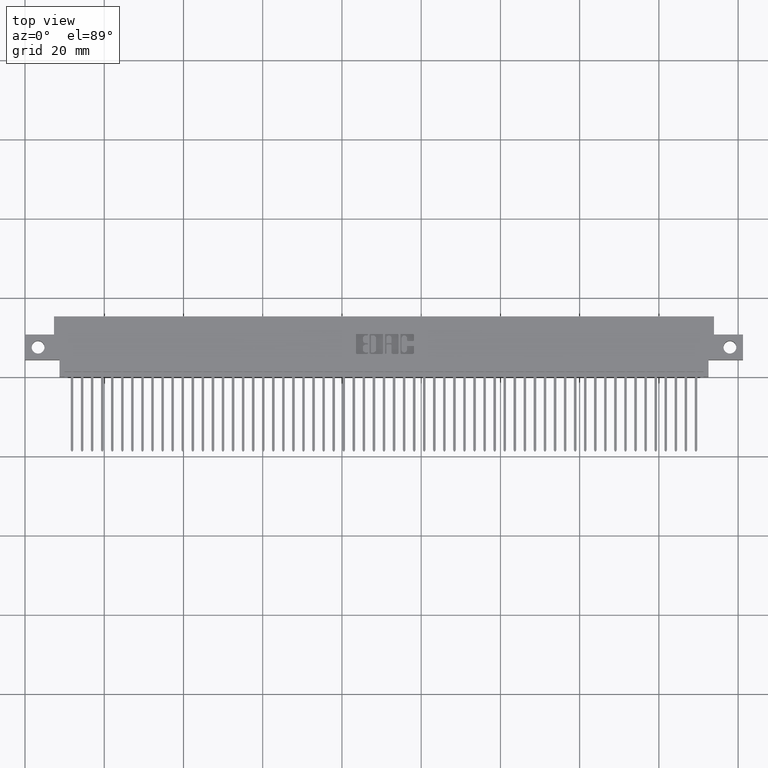
[diagram: clean part render]
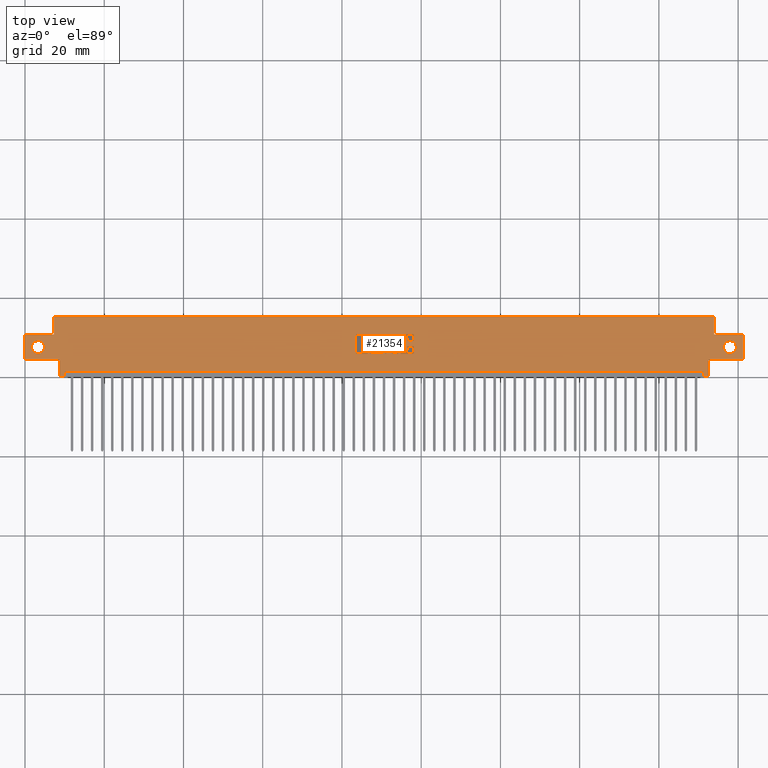
[diagram: same view with one face highlighted and labeled with its STEP entity id]
A machine part, top view. The second image highlights one B-rep face of the part: STEP entity #21354.
In plain terms, the highlighted planar face has unit normal (0, 0, -1).
Its self-contained STEP definition (entity closure, byte-faithful):
#91 = ORIENTED_EDGE ( 'NONE', *, *, #4970, .F. ) ;
#194 = DIRECTION ( 'NONE',  ( -0.0000000000000000000, 0.0000000000000000000, 1.000000000000000000 ) ) ;
#216 = CARTESIAN_POINT ( 'NONE',  ( 6.792500000000000400, 0.1699999999999999800, 7.898971854500427700E-016 ) ) ;
#233 = DIRECTION ( 'NONE',  ( -0.0000000000000000000, 0.0000000000000000000, 1.000000000000000000 ) ) ;
#264 = EDGE_CURVE ( 'NONE', #30564, #38196, #14981, .T. ) ;
#338 = CARTESIAN_POINT ( 'NONE',  ( 3.632528815100188000, 0.3181290308573492800, 0.0000000000000000000 ) ) ;
#360 = CARTESIAN_POINT ( 'NONE',  ( 6.941000000000001600, 0.2950000000000007600, 0.0000000000000000000 ) ) ;
#446 = CARTESIAN_POINT ( 'NONE',  ( 3.854362961706133900, 0.2268432979619826600, 0.0000000000000000000 ) ) ;
#563 = CARTESIAN_POINT ( 'NONE',  ( 7.135000000000000700, 0.5999999999999999800, 0.0000000000000000000 ) ) ;
#667 = AXIS2_PLACEMENT_3D ( 'NONE', #30487, #9021, #34294 ) ;
#702 = CARTESIAN_POINT ( 'NONE',  ( 3.582959680570987300, 0.2337142671046474100, 0.0000000000000000000 ) ) ;
#734 = AXIS2_PLACEMENT_3D ( 'NONE', #18015, #3514, #14060 ) ;
#783 = EDGE_LOOP ( 'NONE', ( #44474, #28794, #91, #19382, #26751, #30014, #6789, #22303 ) ) ;
#784 = EDGE_CURVE ( 'NONE', #27053, #19012, #17725, .T. ) ;
#876 = VERTEX_POINT ( 'NONE', #16237 ) ;
#917 = ORIENTED_EDGE ( 'NONE', *, *, #28686, .T. ) ;
#993 = CARTESIAN_POINT ( 'NONE',  ( 3.854362961706166800, 0.3539562271012330300, 0.0000000000000000000 ) ) ;
#1041 = EDGE_CURVE ( 'NONE', #14621, #26106, #32936, .T. ) ;
#1088 = VERTEX_POINT ( 'NONE', #14156 ) ;
#1107 = CARTESIAN_POINT ( 'NONE',  ( 3.387137060005084100, 0.2867188862052000300, 0.0000000000000000000 ) ) ;
#1119 = CIRCLE ( 'NONE', #45252, 0.009815670203787768200 ) ;
#1169 = DIRECTION ( 'NONE',  ( 1.000000000000000000, 0.0000000000000000000, 0.0000000000000000000 ) ) ;
#1333 = VERTEX_POINT ( 'NONE', #43919 ) ;
#1395 = VECTOR ( 'NONE', #10542, 39.37007874015748100 ) ;
#1465 = DIRECTION ( 'NONE',  ( -0.0000000000000000000, -1.000000000000000000, -0.0000000000000000000 ) ) ;
#1472 = VERTEX_POINT ( 'NONE', #10151 ) ;
#1582 = DIRECTION ( 'NONE',  ( -0.0000000000000000000, 0.0000000000000000000, 1.000000000000000000 ) ) ;
#1630 = EDGE_CURVE ( 'NONE', #40927, #2916, #15379, .T. ) ;
#1643 = CIRCLE ( 'NONE', #36471, 0.03141014465221592800 ) ;
#1653 = VERTEX_POINT ( 'NONE', #338 ) ;
#1676 = VERTEX_POINT ( 'NONE', #3259 ) ;
#1679 = LINE ( 'NONE', #35444, #25346 ) ;
#1776 = ORIENTED_EDGE ( 'NONE', *, *, #37630, .T. ) ;
#1810 = VERTEX_POINT ( 'NONE', #21998 ) ;
#1989 = VERTEX_POINT ( 'NONE', #12195 ) ;
#2081 = LINE ( 'NONE', #20170, #28560 ) ;
#2146 = VERTEX_POINT ( 'NONE', #24601 ) ;
#2207 = VECTOR ( 'NONE', #23719, 39.37007874015748100 ) ;
#2306 = VERTEX_POINT ( 'NONE', #7416 ) ;
#2439 = ORIENTED_EDGE ( 'NONE', *, *, #44091, .T. ) ;
#2487 = VECTOR ( 'NONE', #41875, 39.37007874015748100 ) ;
#2638 = CARTESIAN_POINT ( 'NONE',  ( 0.0000000000000000000, 0.5999999999999999800, 0.0000000000000000000 ) ) ;
#2694 = DIRECTION ( 'NONE',  ( -1.000000000000000000, -0.0000000000000000000, -0.0000000000000000000 ) ) ;
#2803 = ORIENTED_EDGE ( 'NONE', *, *, #41339, .F. ) ;
#2863 = DIRECTION ( 'NONE',  ( -1.000000000000000000, -0.0000000000000000000, -0.0000000000000000000 ) ) ;
#2871 = CARTESIAN_POINT ( 'NONE',  ( 3.804793827176966600, 0.3063502266127570200, 0.0000000000000000000 ) ) ;
#2893 = VERTEX_POINT ( 'NONE', #36463 ) ;
#2916 = VERTEX_POINT ( 'NONE', #32801 ) ;
#3051 = ORIENTED_EDGE ( 'NONE', *, *, #22977, .F. ) ;
#3095 = ORIENTED_EDGE ( 'NONE', *, *, #11048, .T. ) ;
#3259 = CARTESIAN_POINT ( 'NONE',  ( 3.423455039759169000, 0.4133410318342096200, 0.0000000000000000000 ) ) ;
#3391 = ORIENTED_EDGE ( 'NONE', *, *, #10625, .F. ) ;
#3514 = DIRECTION ( 'NONE',  ( -0.0000000000000000000, 0.0000000000000000000, 1.000000000000000000 ) ) ;
#3610 = EDGE_LOOP ( 'NONE', ( #28800, #22172, #23782, #27740, #39690, #7722, #15343, #36798, #44521, #5131, #5933, #40824, #25603, #24251, #10089, #6788, #24886, #5022, #41905, #40056, #31040 ) ) ;
#3715 = CARTESIAN_POINT ( 'NONE',  ( 3.549095618367861700, 0.2366589681657894100, 0.0000000000000000000 ) ) ;
#3798 = DIRECTION ( 'NONE',  ( 1.000000000000000000, 0.0000000000000000000, 0.0000000000000000000 ) ) ;
#3948 = DIRECTION ( 'NONE',  ( 1.000000000000000000, 0.0000000000000000000, 0.0000000000000000000 ) ) ;
#4066 = CARTESIAN_POINT ( 'NONE',  ( 3.286526440416115400, 0.2366589681657894100, 0.0000000000000000000 ) ) ;
#4146 = VERTEX_POINT ( 'NONE', #13284 ) ;
#4195 = AXIS2_PLACEMENT_3D ( 'NONE', #7208, #39018, #28516 ) ;
#4226 = CARTESIAN_POINT ( 'NONE',  ( 3.854362961706131700, 0.4133410318342103900, 0.0000000000000000000 ) ) ;
#4400 = CARTESIAN_POINT ( 'NONE',  ( 3.854362961706133900, 0.2366589681657894100, 0.0000000000000000000 ) ) ;
#4509 = ORIENTED_EDGE ( 'NONE', *, *, #4749, .F. ) ;
#4652 = CARTESIAN_POINT ( 'NONE',  ( 3.387137060005084100, 0.3632811137948578400, 0.0000000000000000000 ) ) ;
#4692 = ORIENTED_EDGE ( 'NONE', *, *, #10092, .F. ) ;
#4749 = EDGE_CURVE ( 'NONE', #24287, #8225, #17411, .T. ) ;
#4756 = VECTOR ( 'NONE', #39644, 39.37007874015748100 ) ;
#4777 = FACE_BOUND ( 'NONE', #37970, .T. ) ;
#4827 = EDGE_CURVE ( 'NONE', #30575, #33932, #1643, .T. ) ;
#4913 = DIRECTION ( 'NONE',  ( -0.0000000000000000000, 0.0000000000000000000, 1.000000000000000000 ) ) ;
#4964 = ORIENTED_EDGE ( 'NONE', *, *, #20894, .F. ) ;
#4970 = EDGE_CURVE ( 'NONE', #10348, #32690, #36592, .T. ) ;
#4998 = DIRECTION ( 'NONE',  ( -0.0000000000000000000, 1.000000000000000000, -0.0000000000000000000 ) ) ;
#5022 = ORIENTED_EDGE ( 'NONE', *, *, #7298, .F. ) ;
#5028 = CIRCLE ( 'NONE', #45544, 0.009815670203805252500 ) ;
#5131 = ORIENTED_EDGE ( 'NONE', *, *, #264, .T. ) ;
#5270 = CARTESIAN_POINT ( 'NONE',  ( 0.0000000000000000000, 0.2268432979619841000, 0.0000000000000000000 ) ) ;
#5423 = EDGE_CURVE ( 'NONE', #32579, #38389, #42261, .T. ) ;
#5442 = CIRCLE ( 'NONE', #4195, 0.009815670203806891800 ) ;
#5453 = EDGE_LOOP ( 'NONE', ( #4509, #3391 ) ) ;
#5521 = CARTESIAN_POINT ( 'NONE',  ( 3.742464321382818600, 0.2668421540424524800, 0.0000000000000000000 ) ) ;
#5740 = ORIENTED_EDGE ( 'NONE', *, *, #21071, .T. ) ;
#5793 = EDGE_CURVE ( 'NONE', #37746, #1653, #41681, .T. ) ;
#5872 = VECTOR ( 'NONE', #25123, 39.37007874015748100 ) ;
#5933 = ORIENTED_EDGE ( 'NONE', *, *, #6584, .F. ) ;
#6007 = CARTESIAN_POINT ( 'NONE',  ( 0.3924999999999996800, 0.0000000000000000000, 0.0000000000000000000 ) ) ;
#6074 = VERTEX_POINT ( 'NONE', #38379 ) ;
#6080 = LINE ( 'NONE', #10922, #32651 ) ;
#6119 = CARTESIAN_POINT ( 'NONE',  ( 3.589830649713647000, 0.2337142671046474100, 0.0000000000000000000 ) ) ;
#6142 = CARTESIAN_POINT ( 'NONE',  ( 0.0000000000000000000, 0.4231567020380321800, 0.0000000000000000000 ) ) ;
#6177 = VERTEX_POINT ( 'NONE', #14490 ) ;
#6211 = DIRECTION ( 'NONE',  ( 1.000000000000000000, 0.0000000000000000000, 0.0000000000000000000 ) ) ;
#6251 = VERTEX_POINT ( 'NONE', #39177 ) ;
#6325 = CARTESIAN_POINT ( 'NONE',  ( 3.585904381632127400, 0.4231567020380060400, 0.0000000000000000000 ) ) ;
#6355 = AXIS2_PLACEMENT_3D ( 'NONE', #14654, #10841, #3948 ) ;
#6443 = LINE ( 'NONE', #6142, #43283 ) ;
#6470 = VERTEX_POINT ( 'NONE', #40758 ) ;
#6482 = VERTEX_POINT ( 'NONE', #12082 ) ;
#6500 = VECTOR ( 'NONE', #35402, 39.37007874015748100 ) ;
#6542 = VERTEX_POINT ( 'NONE', #19044 ) ;
#6584 = EDGE_CURVE ( 'NONE', #876, #38196, #34810, .T. ) ;
#6615 = DIRECTION ( 'NONE',  ( 0.0000000000000000000, -1.000000000000000000, 0.0000000000000000000 ) ) ;
#6788 = ORIENTED_EDGE ( 'NONE', *, *, #26376, .F. ) ;
#6789 = ORIENTED_EDGE ( 'NONE', *, *, #32417, .F. ) ;
#6807 = LINE ( 'NONE', #6970, #9073 ) ;
#6881 = CARTESIAN_POINT ( 'NONE',  ( 3.864178631909972200, 0.0000000000000000000, 0.0000000000000000000 ) ) ;
#6898 = CARTESIAN_POINT ( 'NONE',  ( 3.296342110619922200, 0.2366589681657894100, 0.0000000000000000000 ) ) ;
#6909 = ORIENTED_EDGE ( 'NONE', *, *, #25952, .F. ) ;
#6970 = CARTESIAN_POINT ( 'NONE',  ( 0.0000000000000000000, 0.3318709691426833300, 0.0000000000000000000 ) ) ;
#7015 = CARTESIAN_POINT ( 'NONE',  ( 3.738538053301299500, 0.4133410318342096200, 0.0000000000000000000 ) ) ;
#7034 = DIRECTION ( 'NONE',  ( -0.0000000000000000000, 1.000000000000000000, -0.0000000000000000000 ) ) ;
#7208 = CARTESIAN_POINT ( 'NONE',  ( 3.433270709962976200, 0.2366589681657894100, 0.0000000000000000000 ) ) ;
#7276 = CARTESIAN_POINT ( 'NONE',  ( 3.286526440416115400, 0.4133410318342096200, 0.0000000000000000000 ) ) ;
#7298 = EDGE_CURVE ( 'NONE', #43842, #29191, #6443, .T. ) ;
#7319 = DIRECTION ( 'NONE',  ( 1.000000000000000000, 0.0000000000000000000, 0.0000000000000000000 ) ) ;
#7383 = LINE ( 'NONE', #45799, #20915 ) ;
#7416 = CARTESIAN_POINT ( 'NONE',  ( 0.3424999999999999700, 0.1699999999999999800, 0.0000000000000000000 ) ) ;
#7504 = VERTEX_POINT ( 'NONE', #17221 ) ;
#7634 = EDGE_CURVE ( 'NONE', #21026, #12960, #30131, .T. ) ;
#7650 = EDGE_CURVE ( 'NONE', #26898, #10774, #27853, .T. ) ;
#7709 = DIRECTION ( 'NONE',  ( -0.0000000000000000000, -1.000000000000000000, -0.0000000000000000000 ) ) ;
#7719 = CARTESIAN_POINT ( 'NONE',  ( 6.792500000000000400, 0.0000000000000000000, 0.0000000000000000000 ) ) ;
#7722 = ORIENTED_EDGE ( 'NONE', *, *, #34902, .F. ) ;
#7726 = VECTOR ( 'NONE', #8182, 39.37007874015748100 ) ;
#7778 = CARTESIAN_POINT ( 'NONE',  ( 3.701729290037010700, 0.2268432979619841000, 0.0000000000000000000 ) ) ;
#7794 = EDGE_CURVE ( 'NONE', #24165, #36481, #12064, .T. ) ;
#7929 = DIRECTION ( 'NONE',  ( 1.000000000000000000, 0.0000000000000000000, 0.0000000000000000000 ) ) ;
#8004 = CARTESIAN_POINT ( 'NONE',  ( 3.407504575677997600, 0.2337142671046474100, 0.0000000000000000000 ) ) ;
#8092 = DIRECTION ( 'NONE',  ( -0.0000000000000000000, 0.0000000000000000000, 1.000000000000000000 ) ) ;
#8178 = CARTESIAN_POINT ( 'NONE',  ( 0.0000000000000000000, 0.4231567020380505000, 0.0000000000000000000 ) ) ;
#8182 = DIRECTION ( 'NONE',  ( 0.0000000000000000000, -1.000000000000000000, 0.0000000000000000000 ) ) ;
#8192 = DIRECTION ( 'NONE',  ( 1.000000000000000000, 0.0000000000000000000, 0.0000000000000000000 ) ) ;
#8205 = DIRECTION ( 'NONE',  ( -0.0000000000000000000, 0.0000000000000000000, 1.000000000000000000 ) ) ;
#8225 = VERTEX_POINT ( 'NONE', #27380 ) ;
#8243 = CARTESIAN_POINT ( 'NONE',  ( 7.135000000000000700, 0.1699999999999999800, 8.737854911916364900E-016 ) ) ;
#8290 = DIRECTION ( 'NONE',  ( 1.000000000000000000, 0.0000000000000000000, 0.0000000000000000000 ) ) ;
#8311 = ORIENTED_EDGE ( 'NONE', *, *, #38759, .F. ) ;
#8488 = AXIS2_PLACEMENT_3D ( 'NONE', #7015, #24659, #31949 ) ;
#8502 = VERTEX_POINT ( 'NONE', #36416 ) ;
#8513 = EDGE_CURVE ( 'NONE', #19838, #26898, #38031, .T. ) ;
#8564 = VERTEX_POINT ( 'NONE', #360 ) ;
#8615 = EDGE_CURVE ( 'NONE', #30661, #14661, #42004, .T. ) ;
#8789 = VECTOR ( 'NONE', #45174, 39.37007874015748100 ) ;
#8840 = CARTESIAN_POINT ( 'NONE',  ( 0.0000000000000000000, 0.3063502266127570200, 0.0000000000000000000 ) ) ;
#8869 = CARTESIAN_POINT ( 'NONE',  ( 3.794978156973178900, 0.0000000000000000000, 0.0000000000000000000 ) ) ;
#9021 = DIRECTION ( 'NONE',  ( -0.0000000000000000000, 0.0000000000000000000, 1.000000000000000000 ) ) ;
#9073 = VECTOR ( 'NONE', #32217, 39.37007874015748100 ) ;
#9194 = ORIENTED_EDGE ( 'NONE', *, *, #23230, .F. ) ;
#9249 = AXIS2_PLACEMENT_3D ( 'NONE', #20831, #35207, #46219 ) ;
#9351 = VECTOR ( 'NONE', #4998, 39.37007874015748100 ) ;
#9418 = CARTESIAN_POINT ( 'NONE',  ( 3.728722383097458500, 0.0000000000000000000, 0.0000000000000000000 ) ) ;
#9613 = DIRECTION ( 'NONE',  ( 1.000000000000000000, 0.0000000000000000000, 0.0000000000000000000 ) ) ;
#9622 = CARTESIAN_POINT ( 'NONE',  ( 3.558911288571669400, 0.2366589681657894100, 0.0000000000000000000 ) ) ;
#9929 = CARTESIAN_POINT ( 'NONE',  ( -0.0000000000000000000, 0.3181290308573562800, 0.0000000000000000000 ) ) ;
#9951 = CARTESIAN_POINT ( 'NONE',  ( 3.407504575677999800, 0.4162857328953857300, 0.0000000000000000000 ) ) ;
#10015 = AXIS2_PLACEMENT_3D ( 'NONE', #31142, #20407, #27036 ) ;
#10032 = VERTEX_POINT ( 'NONE', #8004 ) ;
#10089 = ORIENTED_EDGE ( 'NONE', *, *, #31610, .F. ) ;
#10092 = EDGE_CURVE ( 'NONE', #32484, #27977, #10990, .T. ) ;
#10151 = CARTESIAN_POINT ( 'NONE',  ( 3.400633606535351300, 0.4094147637527351700, 0.0000000000000000000 ) ) ;
#10217 = AXIS2_PLACEMENT_3D ( 'NONE', #21947, #25734, #43979 ) ;
#10255 = VECTOR ( 'NONE', #35822, 39.37007874015748100 ) ;
#10329 = CARTESIAN_POINT ( 'NONE',  ( 3.549095618367861700, 0.2268432979619826600, 0.0000000000000000000 ) ) ;
#10348 = VERTEX_POINT ( 'NONE', #10329 ) ;
#10403 = LINE ( 'NONE', #43066, #5872 ) ;
#10439 = AXIS2_PLACEMENT_3D ( 'NONE', #22856, #19409, #18790 ) ;
#10542 = DIRECTION ( 'NONE',  ( 1.000000000000000000, 0.0000000000000000000, 0.0000000000000000000 ) ) ;
#10625 = EDGE_CURVE ( 'NONE', #8225, #24287, #21695, .T. ) ;
#10649 = AXIS2_PLACEMENT_3D ( 'NONE', #32796, #233, #22062 ) ;
#10774 = VERTEX_POINT ( 'NONE', #6119 ) ;
#10816 = CARTESIAN_POINT ( 'NONE',  ( 3.558911288571669400, 0.0000000000000000000, 0.0000000000000000000 ) ) ;
#10841 = DIRECTION ( 'NONE',  ( -0.0000000000000000000, 0.0000000000000000000, 1.000000000000000000 ) ) ;
#10922 = CARTESIAN_POINT ( 'NONE',  ( -1.634053534411870200E-015, 0.2268432979619607000, 0.0000000000000000000 ) ) ;
#10954 = FACE_BOUND ( 'NONE', #3610, .T. ) ;
#10990 = CIRCLE ( 'NONE', #27131, 0.009815670203795964800 ) ;
#11048 = EDGE_CURVE ( 'NONE', #41425, #15878, #31229, .T. ) ;
#11089 = DIRECTION ( 'NONE',  ( 1.000000000000000000, 0.0000000000000000000, 0.0000000000000000000 ) ) ;
#11179 = CIRCLE ( 'NONE', #43391, 0.03141014465217440600 ) ;
#11243 = CARTESIAN_POINT ( 'NONE',  ( 6.847499999999999300, 0.5999999999999999800, 0.0000000000000000000 ) ) ;
#11313 = DIRECTION ( 'NONE',  ( -0.0000000000000000000, 0.0000000000000000000, 1.000000000000000000 ) ) ;
#11355 = CARTESIAN_POINT ( 'NONE',  ( 3.711544960240806400, 0.2366589681657803300, 0.0000000000000000000 ) ) ;
#11373 = EDGE_CURVE ( 'NONE', #6251, #4146, #28374, .T. ) ;
#11477 = CARTESIAN_POINT ( 'NONE',  ( 3.355726915352927900, 0.0000000000000000000, 0.0000000000000000000 ) ) ;
#11512 = CARTESIAN_POINT ( 'NONE',  ( 3.400633606535351300, 0.4162857328953857300, 0.0000000000000000000 ) ) ;
#11627 = DIRECTION ( 'NONE',  ( -0.0000000000000000000, 0.0000000000000000000, 1.000000000000000000 ) ) ;
#11684 = EDGE_LOOP ( 'NONE', ( #3095, #8311, #6909, #16028, #24896, #44713, #11778, #16171, #46107, #42470, #9194, #38610, #39137, #2803, #22555, #1776 ) ) ;
#11726 = VECTOR ( 'NONE', #17546, 39.37007874015748100 ) ;
#11778 = ORIENTED_EDGE ( 'NONE', *, *, #36649, .F. ) ;
#11827 = CARTESIAN_POINT ( 'NONE',  ( 3.701729290037011600, 0.4133410318342098400, 0.0000000000000000000 ) ) ;
#12030 = CARTESIAN_POINT ( 'NONE',  ( 0.0000000000000000000, 0.4231567020380505000, 0.0000000000000000000 ) ) ;
#12034 = CARTESIAN_POINT ( 'NONE',  ( -0.0000000000000000000, 0.4094147637527351700, 0.0000000000000000000 ) ) ;
#12064 = LINE ( 'NONE', #14016, #1395 ) ;
#12082 = CARTESIAN_POINT ( 'NONE',  ( 3.794978156973166000, 0.3637718973050446700, 0.0000000000000000000 ) ) ;
#12149 = DIRECTION ( 'NONE',  ( 1.000000000000000000, 0.0000000000000000000, 0.0000000000000000000 ) ) ;
#12185 = CARTESIAN_POINT ( 'NONE',  ( 3.854362961706156600, 0.3063502266127570200, 0.0000000000000000000 ) ) ;
#12190 = VECTOR ( 'NONE', #7709, 39.37007874015748100 ) ;
#12195 = CARTESIAN_POINT ( 'NONE',  ( 3.407504575677973600, 0.3250000000000198300, 0.0000000000000000000 ) ) ;
#12393 = CARTESIAN_POINT ( 'NONE',  ( 3.854362961706166800, 0.3637718973050381200, 0.0000000000000000000 ) ) ;
#12436 = EDGE_CURVE ( 'NONE', #1088, #23491, #6807, .T. ) ;
#12474 = DIRECTION ( 'NONE',  ( -1.000000000000000000, 0.0000000000000000000, 0.0000000000000000000 ) ) ;
#12567 = VECTOR ( 'NONE', #19384, 39.37007874015748100 ) ;
#12646 = AXIS2_PLACEMENT_3D ( 'NONE', #11827, #40979, #1169 ) ;
#12662 = VECTOR ( 'NONE', #27772, 39.37007874015748100 ) ;
#12826 = EDGE_CURVE ( 'NONE', #1810, #23128, #27046, .T. ) ;
#12894 = LINE ( 'NONE', #10816, #19685 ) ;
#12914 = VERTEX_POINT ( 'NONE', #5521 ) ;
#12960 = VERTEX_POINT ( 'NONE', #28052 ) ;
#13123 = AXIS2_PLACEMENT_3D ( 'NONE', #41676, #16795, #13307 ) ;
#13168 = CIRCLE ( 'NONE', #12646, 0.009815670203795418300 ) ;
#13195 = VECTOR ( 'NONE', #15420, 39.37007874015748100 ) ;
#13249 = EDGE_CURVE ( 'NONE', #44507, #10774, #14632, .T. ) ;
#13268 = ORIENTED_EDGE ( 'NONE', *, *, #27492, .F. ) ;
#13284 = CARTESIAN_POINT ( 'NONE',  ( 3.433270709963010000, 0.4231567020380505000, 0.0000000000000000000 ) ) ;
#13307 = DIRECTION ( 'NONE',  ( 1.000000000000000000, 0.0000000000000000000, 0.0000000000000000000 ) ) ;
#13309 = EDGE_CURVE ( 'NONE', #19012, #24165, #42375, .T. ) ;
#13376 = EDGE_CURVE ( 'NONE', #13445, #14621, #5028, .T. ) ;
#13445 = VERTEX_POINT ( 'NONE', #993 ) ;
#13447 = ORIENTED_EDGE ( 'NONE', *, *, #36426, .F. ) ;
#13619 = AXIS2_PLACEMENT_3D ( 'NONE', #40419, #29720, #37333 ) ;
#13632 = DIRECTION ( 'NONE',  ( 1.000000000000000000, 0.0000000000000000000, 0.0000000000000000000 ) ) ;
#14016 = CARTESIAN_POINT ( 'NONE',  ( -0.0000000000000000000, 0.2268432979619826600, 0.0000000000000000000 ) ) ;
#14060 = DIRECTION ( 'NONE',  ( 1.000000000000000000, 0.0000000000000000000, 0.0000000000000000000 ) ) ;
#14122 = VECTOR ( 'NONE', #33187, 39.37007874015748100 ) ;
#14156 = CARTESIAN_POINT ( 'NONE',  ( 3.400633606535310400, 0.3318709691426833300, 0.0000000000000000000 ) ) ;
#14366 = FACE_BOUND ( 'NONE', #5453, .T. ) ;
#14490 = CARTESIAN_POINT ( 'NONE',  ( 3.711544960240806400, 0.4133410318342004600, 0.0000000000000000000 ) ) ;
#14621 = VERTEX_POINT ( 'NONE', #44392 ) ;
#14632 = CIRCLE ( 'NONE', #39145, 0.006870969142657995000 ) ;
#14654 = CARTESIAN_POINT ( 'NONE',  ( 3.400633606535310400, 0.3250000000000198300, 0.0000000000000000000 ) ) ;
#14661 = VERTEX_POINT ( 'NONE', #44695 ) ;
#14670 = VECTOR ( 'NONE', #6615, 39.37007874015748100 ) ;
#14769 = DIRECTION ( 'NONE',  ( 1.000000000000000000, 0.0000000000000000000, 0.0000000000000000000 ) ) ;
#14823 = LINE ( 'NONE', #32162, #10255 ) ;
#14925 = DIRECTION ( 'NONE',  ( -0.0000000000000000000, 0.0000000000000000000, 1.000000000000000000 ) ) ;
#14965 = AXIS2_PLACEMENT_3D ( 'NONE', #42703, #35188, #20815 ) ;
#14981 = CIRCLE ( 'NONE', #9249, 0.03141014465218151100 ) ;
#15070 = CARTESIAN_POINT ( 'NONE',  ( 3.433270709963010000, 0.4133410318342096200, 0.0000000000000000000 ) ) ;
#15273 = LINE ( 'NONE', #9929, #26504 ) ;
#15343 = ORIENTED_EDGE ( 'NONE', *, *, #26202, .F. ) ;
#15362 = CARTESIAN_POINT ( 'NONE',  ( 3.642344485303985000, 0.2366589681657873000, 0.0000000000000000000 ) ) ;
#15366 = AXIS2_PLACEMENT_3D ( 'NONE', #36252, #194, #14769 ) ;
#15379 = LINE ( 'NONE', #36232, #35708 ) ;
#15384 = AXIS2_PLACEMENT_3D ( 'NONE', #6898, #39651, #32152 ) ;
#15420 = DIRECTION ( 'NONE',  ( 0.0000000000000000000, -1.000000000000000000, 0.0000000000000000000 ) ) ;
#15423 = CARTESIAN_POINT ( 'NONE',  ( 3.589830649713647000, 0.3083133606535450300, 0.0000000000000000000 ) ) ;
#15544 = DIRECTION ( 'NONE',  ( -0.0000000000000000000, 0.0000000000000000000, 1.000000000000000000 ) ) ;
#15628 = VERTEX_POINT ( 'NONE', #16900 ) ;
#15645 = CARTESIAN_POINT ( 'NONE',  ( 3.400633606535310400, 0.3250000000000198300, 0.0000000000000000000 ) ) ;
#15878 = VERTEX_POINT ( 'NONE', #7719 ) ;
#15896 = CARTESIAN_POINT ( 'NONE',  ( 3.701729290037010700, 0.2366589681657803300, 0.0000000000000000000 ) ) ;
#16028 = ORIENTED_EDGE ( 'NONE', *, *, #44413, .F. ) ;
#16043 = EDGE_CURVE ( 'NONE', #12914, #18573, #27971, .T. ) ;
#16097 = EDGE_CURVE ( 'NONE', #1472, #30871, #34678, .T. ) ;
#16118 = LINE ( 'NONE', #28431, #6500 ) ;
#16124 = CARTESIAN_POINT ( 'NONE',  ( 3.400633606535351300, 0.4231567020380321800, 0.0000000000000000000 ) ) ;
#16171 = ORIENTED_EDGE ( 'NONE', *, *, #19516, .F. ) ;
#16237 = CARTESIAN_POINT ( 'NONE',  ( 3.400633606415414300, 0.2405852362473096800, 0.0000000000000000000 ) ) ;
#16264 = VECTOR ( 'NONE', #34597, 39.37007874015748100 ) ;
#16451 = VERTEX_POINT ( 'NONE', #24689 ) ;
#16700 = VERTEX_POINT ( 'NONE', #22194 ) ;
#16795 = DIRECTION ( 'NONE',  ( 0.0000000000000000000, 0.0000000000000000000, 1.000000000000000000 ) ) ;
#16900 = CARTESIAN_POINT ( 'NONE',  ( 6.742500000000000600, 0.05000000000000000300, 0.0000000000000000000 ) ) ;
#16946 = ORIENTED_EDGE ( 'NONE', *, *, #17462, .F. ) ;
#17221 = CARTESIAN_POINT ( 'NONE',  ( 3.864178631909940300, 0.2965345564089699200, 0.0000000000000000000 ) ) ;
#17296 = CARTESIAN_POINT ( 'NONE',  ( 3.728722383097458500, 0.4133410318342096200, 0.0000000000000000000 ) ) ;
#17338 = CARTESIAN_POINT ( 'NONE',  ( 7.005000000000001700, 0.2950000000000007600, 0.0000000000000000000 ) ) ;
#17411 = CIRCLE ( 'NONE', #13123, 0.06399999999999997400 ) ;
#17462 = EDGE_CURVE ( 'NONE', #26106, #40141, #37889, .T. ) ;
#17546 = DIRECTION ( 'NONE',  ( 0.0000000000000000000, 1.000000000000000000, -0.0000000000000000000 ) ) ;
#17555 = DIRECTION ( 'NONE',  ( -1.000000000000000000, 0.0000000000000000000, 0.0000000000000000000 ) ) ;
#17725 = LINE ( 'NONE', #9418, #2487 ) ;
#17957 = EDGE_CURVE ( 'NONE', #16700, #10348, #37801, .T. ) ;
#18015 = CARTESIAN_POINT ( 'NONE',  ( 3.400633606535335300, 0.2337142671046474100, 0.0000000000000000000 ) ) ;
#18291 = ORIENTED_EDGE ( 'NONE', *, *, #42522, .F. ) ;
#18293 = EDGE_CURVE ( 'NONE', #23469, #1333, #6080, .T. ) ;
#18489 = CARTESIAN_POINT ( 'NONE',  ( 3.794978156973178900, 0.2668421540424524800, 0.0000000000000000000 ) ) ;
#18573 = VERTEX_POINT ( 'NONE', #31072 ) ;
#18725 = ORIENTED_EDGE ( 'NONE', *, *, #1041, .F. ) ;
#18790 = DIRECTION ( 'NONE',  ( 1.000000000000000000, 0.0000000000000000000, 0.0000000000000000000 ) ) ;
#18948 = CARTESIAN_POINT ( 'NONE',  ( 6.792500000000000400, 0.1699999999999999800, 7.898971854500427700E-016 ) ) ;
#18985 = EDGE_CURVE ( 'NONE', #2146, #6482, #29179, .T. ) ;
#19012 = VERTEX_POINT ( 'NONE', #22075 ) ;
#19028 = LINE ( 'NONE', #18948, #32012 ) ;
#19036 = DIRECTION ( 'NONE',  ( -0.0000000000000000000, 0.0000000000000000000, 1.000000000000000000 ) ) ;
#19044 = CARTESIAN_POINT ( 'NONE',  ( 7.135000000000000700, 0.4199999999999999800, 0.0000000000000000000 ) ) ;
#19073 = VECTOR ( 'NONE', #21328, 39.37007874015748100 ) ;
#19317 = CARTESIAN_POINT ( 'NONE',  ( 3.652160155507788300, 0.2366589681657873000, 0.0000000000000000000 ) ) ;
#19352 = CARTESIAN_POINT ( 'NONE',  ( 3.711544960240806400, 0.0000000000000000000, 0.0000000000000000000 ) ) ;
#19382 = ORIENTED_EDGE ( 'NONE', *, *, #17957, .F. ) ;
#19384 = DIRECTION ( 'NONE',  ( -1.000000000000000000, 0.0000000000000000000, 0.0000000000000000000 ) ) ;
#19409 = DIRECTION ( 'NONE',  ( -0.0000000000000000000, 0.0000000000000000000, 1.000000000000000000 ) ) ;
#19509 = AXIS2_PLACEMENT_3D ( 'NONE', #11512, #26472, #25858 ) ;
#19516 = EDGE_CURVE ( 'NONE', #2916, #16451, #38824, .T. ) ;
#19659 = DIRECTION ( 'NONE',  ( -0.0000000000000000000, 0.0000000000000000000, 1.000000000000000000 ) ) ;
#19685 = VECTOR ( 'NONE', #43452, 39.37007874015748100 ) ;
#19746 = CARTESIAN_POINT ( 'NONE',  ( 3.738538053301265300, 0.2268432979619826600, 0.0000000000000000000 ) ) ;
#19767 = LINE ( 'NONE', #26188, #40208 ) ;
#19792 = CARTESIAN_POINT ( 'NONE',  ( -2.860952991545795400E-014, 0.2405852362469053100, 0.0000000000000000000 ) ) ;
#19838 = VERTEX_POINT ( 'NONE', #30200 ) ;
#19920 = CIRCLE ( 'NONE', #40625, 0.009815670203806345400 ) ;
#20027 = DIRECTION ( 'NONE',  ( -0.0000000000000000000, 0.0000000000000000000, 1.000000000000000000 ) ) ;
#20060 = CARTESIAN_POINT ( 'NONE',  ( 7.135000000000000700, 0.1699999999999999800, 8.737854911916364900E-016 ) ) ;
#20062 = DIRECTION ( 'NONE',  ( -1.000000000000000000, 0.0000000000000000000, 0.0000000000000000000 ) ) ;
#20096 = EDGE_CURVE ( 'NONE', #6074, #33932, #16118, .T. ) ;
#20170 = CARTESIAN_POINT ( 'NONE',  ( 3.642344485303985000, 0.0000000000000000000, 0.0000000000000000000 ) ) ;
#20407 = DIRECTION ( 'NONE',  ( -0.0000000000000000000, 0.0000000000000000000, 1.000000000000000000 ) ) ;
#20485 = DIRECTION ( 'NONE',  ( -0.0000000000000000000, -1.000000000000000000, -0.0000000000000000000 ) ) ;
#20561 = DIRECTION ( 'NONE',  ( 1.000000000000000000, 0.0000000000000000000, 0.0000000000000000000 ) ) ;
#20597 = EDGE_LOOP ( 'NONE', ( #35108, #42909, #917, #4692, #5740, #43001, #46527, #23019, #40932, #34347, #32054, #46765, #45132, #28417 ) ) ;
#20814 = LINE ( 'NONE', #40292, #9351 ) ;
#20815 = DIRECTION ( 'NONE',  ( 1.000000000000000000, 0.0000000000000000000, 0.0000000000000000000 ) ) ;
#20831 = CARTESIAN_POINT ( 'NONE',  ( 3.387137060005109400, 0.2719953808994898800, 0.0000000000000000000 ) ) ;
#20851 = DIRECTION ( 'NONE',  ( 1.000000000000000000, 0.0000000000000000000, 0.0000000000000000000 ) ) ;
#20894 = EDGE_CURVE ( 'NONE', #6482, #8502, #46736, .T. ) ;
#20915 = VECTOR ( 'NONE', #13632, 39.37007874015748100 ) ;
#20936 = CARTESIAN_POINT ( 'NONE',  ( 7.135000000000000700, 0.4199999999999999800, 0.0000000000000000000 ) ) ;
#21026 = VERTEX_POINT ( 'NONE', #44811 ) ;
#21071 = EDGE_CURVE ( 'NONE', #32484, #14661, #35845, .T. ) ;
#21135 = ORIENTED_EDGE ( 'NONE', *, *, #22164, .F. ) ;
#21328 = DIRECTION ( 'NONE',  ( 0.0000000000000000000, 1.000000000000000000, -0.0000000000000000000 ) ) ;
#21348 = ORIENTED_EDGE ( 'NONE', *, *, #36302, .T. ) ;
#21354 = ADVANCED_FACE ( 'NONE', ( #43258, #10954, #4777, #14366, #42113, #32432, #32978 ), #32838, .F. ) ;
#21523 = CARTESIAN_POINT ( 'NONE',  ( 3.387137060005125400, 0.4094147637527351700, 0.0000000000000000000 ) ) ;
#21537 = EDGE_CURVE ( 'NONE', #6177, #35631, #13168, .T. ) ;
#21695 = CIRCLE ( 'NONE', #13619, 0.06399999999999997400 ) ;
#21864 = EDGE_LOOP ( 'NONE', ( #37560, #29631, #4964, #45172, #21348, #39756, #2439, #25911, #13268, #24940, #26092, #24334, #21135, #32759, #27114, #30560, #36224, #3051, #16946, #18725 ) ) ;
#21947 = CARTESIAN_POINT ( 'NONE',  ( 0.0000000000000000000, 0.5999999999999999800, 0.0000000000000000000 ) ) ;
#21998 = CARTESIAN_POINT ( 'NONE',  ( 0.3424999999999999700, 0.0000000000000000000, 0.0000000000000000000 ) ) ;
#22062 = DIRECTION ( 'NONE',  ( 1.000000000000000000, 0.0000000000000000000, 0.0000000000000000000 ) ) ;
#22075 = CARTESIAN_POINT ( 'NONE',  ( 3.728722383097458500, 0.2366589681657894100, 0.0000000000000000000 ) ) ;
#22133 = AXIS2_PLACEMENT_3D ( 'NONE', #42577, #30635, #20851 ) ;
#22164 = EDGE_CURVE ( 'NONE', #36481, #30146, #19920, .T. ) ;
#22172 = ORIENTED_EDGE ( 'NONE', *, *, #20096, .F. ) ;
#22194 = CARTESIAN_POINT ( 'NONE',  ( 3.433270709962976200, 0.2268432979619826600, 0.0000000000000000000 ) ) ;
#22303 = ORIENTED_EDGE ( 'NONE', *, *, #11373, .F. ) ;
#22376 = CARTESIAN_POINT ( 'NONE',  ( 3.558911288571669400, 0.4133410318342096200, 0.0000000000000000000 ) ) ;
#22550 = CARTESIAN_POINT ( 'NONE',  ( 3.549095618367827900, 0.4133410318342094500, 0.0000000000000000000 ) ) ;
#22552 = DIRECTION ( 'NONE',  ( 0.0000000000000000000, 1.000000000000000000, -0.0000000000000000000 ) ) ;
#22555 = ORIENTED_EDGE ( 'NONE', *, *, #37070, .F. ) ;
#22770 = CARTESIAN_POINT ( 'NONE',  ( 3.804793827176966600, 0.2965345564089690300, 0.0000000000000000000 ) ) ;
#22837 = CARTESIAN_POINT ( 'NONE',  ( 3.576088711428330800, 0.2337142671046474100, 0.0000000000000000000 ) ) ;
#22856 = CARTESIAN_POINT ( 'NONE',  ( 3.632528815100188000, 0.3083133606535522500, 0.0000000000000000000 ) ) ;
#22977 = EDGE_CURVE ( 'NONE', #40141, #6470, #44472, .T. ) ;
#22980 = CIRCLE ( 'NONE', #40118, 0.006870969142663458500 ) ;
#23019 = ORIENTED_EDGE ( 'NONE', *, *, #5793, .T. ) ;
#23128 = VERTEX_POINT ( 'NONE', #6007 ) ;
#23187 = CIRCLE ( 'NONE', #26942, 0.06400000000000019600 ) ;
#23230 = EDGE_CURVE ( 'NONE', #2306, #31346, #45024, .T. ) ;
#23321 = DIRECTION ( 'NONE',  ( 1.000000000000000000, 0.0000000000000000000, 0.0000000000000000000 ) ) ;
#23462 = DIRECTION ( 'NONE',  ( 0.0000000000000000000, 1.000000000000000000, -0.0000000000000000000 ) ) ;
#23469 = VERTEX_POINT ( 'NONE', #36330 ) ;
#23491 = VERTEX_POINT ( 'NONE', #41431 ) ;
#23719 = DIRECTION ( 'NONE',  ( -0.0000000000000000000, -1.000000000000000000, -0.0000000000000000000 ) ) ;
#23739 = AXIS2_PLACEMENT_3D ( 'NONE', #1107, #19036, #8290 ) ;
#23782 = ORIENTED_EDGE ( 'NONE', *, *, #38136, .T. ) ;
#23786 = EDGE_CURVE ( 'NONE', #1676, #2893, #10403, .T. ) ;
#24063 = VECTOR ( 'NONE', #37783, 39.37007874015748100 ) ;
#24165 = VERTEX_POINT ( 'NONE', #19746 ) ;
#24214 = VECTOR ( 'NONE', #2694, 39.37007874015748100 ) ;
#24251 = ORIENTED_EDGE ( 'NONE', *, *, #18293, .F. ) ;
#24287 = VERTEX_POINT ( 'NONE', #24438 ) ;
#24334 = ORIENTED_EDGE ( 'NONE', *, *, #30872, .F. ) ;
#24438 = CARTESIAN_POINT ( 'NONE',  ( 0.1939999999999999800, 0.2949999999999999300, 0.0000000000000000000 ) ) ;
#24601 = CARTESIAN_POINT ( 'NONE',  ( 3.794978156973166000, 0.3831578454992594100, 0.0000000000000000000 ) ) ;
#24655 = CARTESIAN_POINT ( 'NONE',  ( 3.854362961706153000, 0.2965345564089699200, 0.0000000000000000000 ) ) ;
#24659 = DIRECTION ( 'NONE',  ( -0.0000000000000000000, 0.0000000000000000000, 1.000000000000000000 ) ) ;
#24689 = CARTESIAN_POINT ( 'NONE',  ( 0.2874999999999999800, 0.5999999999999999800, 0.0000000000000000000 ) ) ;
#24819 = CARTESIAN_POINT ( 'NONE',  ( 3.642344485303985000, 0.3083133606535429200, 0.0000000000000000000 ) ) ;
#24886 = ORIENTED_EDGE ( 'NONE', *, *, #34684, .F. ) ;
#24896 = ORIENTED_EDGE ( 'NONE', *, *, #46226, .F. ) ;
#24940 = ORIENTED_EDGE ( 'NONE', *, *, #5423, .F. ) ;
#25123 = DIRECTION ( 'NONE',  ( 0.0000000000000000000, -1.000000000000000000, 0.0000000000000000000 ) ) ;
#25346 = VECTOR ( 'NONE', #45809, 39.37007874015748100 ) ;
#25603 = ORIENTED_EDGE ( 'NONE', *, *, #38483, .F. ) ;
#25727 = AXIS2_PLACEMENT_3D ( 'NONE', #41898, #34706, #30757 ) ;
#25728 = VECTOR ( 'NONE', #22552, 39.37007874015748100 ) ;
#25734 = DIRECTION ( 'NONE',  ( 0.0000000000000000000, 0.0000000000000000000, -1.000000000000000000 ) ) ;
#25735 = LINE ( 'NONE', #563, #12190 ) ;
#25779 = DIRECTION ( 'NONE',  ( 1.000000000000000000, 0.0000000000000000000, 0.0000000000000000000 ) ) ;
#25858 = DIRECTION ( 'NONE',  ( 1.000000000000000000, 0.0000000000000000000, 0.0000000000000000000 ) ) ;
#25911 = ORIENTED_EDGE ( 'NONE', *, *, #38241, .F. ) ;
#25952 = EDGE_CURVE ( 'NONE', #40715, #31683, #43011, .T. ) ;
#26092 = ORIENTED_EDGE ( 'NONE', *, *, #41963, .F. ) ;
#26106 = VERTEX_POINT ( 'NONE', #41307 ) ;
#26156 = LINE ( 'NONE', #40070, #34105 ) ;
#26188 = CARTESIAN_POINT ( 'NONE',  ( 0.0000000000000000000, 0.5999999999999999800, 0.0000000000000000000 ) ) ;
#26202 = EDGE_CURVE ( 'NONE', #21026, #36276, #15273, .T. ) ;
#26255 = DIRECTION ( 'NONE',  ( -0.0000000000000000000, 0.0000000000000000000, 1.000000000000000000 ) ) ;
#26376 = EDGE_CURVE ( 'NONE', #36356, #42913, #32138, .T. ) ;
#26463 = AXIS2_PLACEMENT_3D ( 'NONE', #4226, #38981, #42953 ) ;
#26472 = DIRECTION ( 'NONE',  ( -0.0000000000000000000, 0.0000000000000000000, 1.000000000000000000 ) ) ;
#26504 = VECTOR ( 'NONE', #9613, 39.37007874015748100 ) ;
#26605 = LINE ( 'NONE', #19352, #37950 ) ;
#26691 = DIRECTION ( 'NONE',  ( -0.0000000000000000000, 0.0000000000000000000, 1.000000000000000000 ) ) ;
#26751 = ORIENTED_EDGE ( 'NONE', *, *, #31596, .F. ) ;
#26834 = CARTESIAN_POINT ( 'NONE',  ( 3.400633606415388600, 0.3181290308573562800, 0.0000000000000000000 ) ) ;
#26898 = VERTEX_POINT ( 'NONE', #15423 ) ;
#26942 = AXIS2_PLACEMENT_3D ( 'NONE', #39252, #35879, #17555 ) ;
#26958 = LINE ( 'NONE', #8869, #16264 ) ;
#27036 = DIRECTION ( 'NONE',  ( 1.000000000000000000, 0.0000000000000000000, 0.0000000000000000000 ) ) ;
#27046 = LINE ( 'NONE', #34557, #33876 ) ;
#27051 = EDGE_CURVE ( 'NONE', #8502, #13445, #1679, .T. ) ;
#27053 = VERTEX_POINT ( 'NONE', #17296 ) ;
#27114 = ORIENTED_EDGE ( 'NONE', *, *, #13309, .F. ) ;
#27131 = AXIS2_PLACEMENT_3D ( 'NONE', #15896, #19659, #45041 ) ;
#27191 = LINE ( 'NONE', #31670, #46552 ) ;
#27380 = CARTESIAN_POINT ( 'NONE',  ( 0.06600000000000003100, 0.2949999999999999300, 0.0000000000000000000 ) ) ;
#27492 = EDGE_CURVE ( 'NONE', #38389, #31952, #1119, .T. ) ;
#27503 = CARTESIAN_POINT ( 'NONE',  ( 6.847499999999999300, 0.4199999999999999800, 0.0000000000000000000 ) ) ;
#27740 = ORIENTED_EDGE ( 'NONE', *, *, #12436, .F. ) ;
#27772 = DIRECTION ( 'NONE',  ( -1.000000000000000000, 0.0000000000000000000, 0.0000000000000000000 ) ) ;
#27832 = VERTEX_POINT ( 'NONE', #18489 ) ;
#27853 = LINE ( 'NONE', #43920, #13195 ) ;
#27958 = EDGE_CURVE ( 'NONE', #1989, #1088, #22980, .T. ) ;
#27971 = LINE ( 'NONE', #33292, #25728 ) ;
#27977 = VERTEX_POINT ( 'NONE', #11355 ) ;
#28052 = CARTESIAN_POINT ( 'NONE',  ( 3.355726915352927900, 0.2867188862052000300, 0.0000000000000000000 ) ) ;
#28374 = LINE ( 'NONE', #8178, #12567 ) ;
#28417 = ORIENTED_EDGE ( 'NONE', *, *, #40004, .F. ) ;
#28431 = CARTESIAN_POINT ( 'NONE',  ( 3.355726915352909700, 0.0000000000000000000, 0.0000000000000000000 ) ) ;
#28516 = DIRECTION ( 'NONE',  ( 1.000000000000000000, 0.0000000000000000000, 0.0000000000000000000 ) ) ;
#28560 = VECTOR ( 'NONE', #23462, 39.37007874015748100 ) ;
#28576 = CIRCLE ( 'NONE', #14965, 0.02625691779517995400 ) ;
#28656 = EDGE_CURVE ( 'NONE', #33496, #45498, #20814, .T. ) ;
#28686 = EDGE_CURVE ( 'NONE', #6177, #27977, #26605, .T. ) ;
#28794 = ORIENTED_EDGE ( 'NONE', *, *, #42952, .F. ) ;
#28800 = ORIENTED_EDGE ( 'NONE', *, *, #4827, .T. ) ;
#28807 = AXIS2_PLACEMENT_3D ( 'NONE', #17338, #31361, #46327 ) ;
#28889 = VERTEX_POINT ( 'NONE', #38328 ) ;
#29097 = AXIS2_PLACEMENT_3D ( 'NONE', #24655, #42455, #6211 ) ;
#29179 = LINE ( 'NONE', #44255, #7726 ) ;
#29191 = VERTEX_POINT ( 'NONE', #32254 ) ;
#29542 = CARTESIAN_POINT ( 'NONE',  ( 3.355726915352927900, 0.2719953808994898800, 0.0000000000000000000 ) ) ;
#29631 = ORIENTED_EDGE ( 'NONE', *, *, #27051, .F. ) ;
#29720 = DIRECTION ( 'NONE',  ( 0.0000000000000000000, 0.0000000000000000000, 1.000000000000000000 ) ) ;
#29793 = LINE ( 'NONE', #42567, #11726 ) ;
#29970 = DIRECTION ( 'NONE',  ( 1.000000000000000000, 0.0000000000000000000, 0.0000000000000000000 ) ) ;
#29974 = CIRCLE ( 'NONE', #29097, 0.009815670203787221800 ) ;
#30014 = ORIENTED_EDGE ( 'NONE', *, *, #23786, .F. ) ;
#30041 = DIRECTION ( 'NONE',  ( 1.000000000000000000, 0.0000000000000000000, 0.0000000000000000000 ) ) ;
#30131 = CIRCLE ( 'NONE', #23739, 0.03141014465215583000 ) ;
#30146 = VERTEX_POINT ( 'NONE', #38169 ) ;
#30200 = CARTESIAN_POINT ( 'NONE',  ( 3.599646319917450200, 0.3181290308573481200, 0.0000000000000000000 ) ) ;
#30427 = CARTESIAN_POINT ( 'NONE',  ( 0.0000000000000000000, 0.1699999999999999800, 0.0000000000000000000 ) ) ;
#30487 = CARTESIAN_POINT ( 'NONE',  ( 3.804793827176977700, 0.3637718973050446700, 0.0000000000000000000 ) ) ;
#30534 = LINE ( 'NONE', #12034, #44775 ) ;
#30560 = ORIENTED_EDGE ( 'NONE', *, *, #784, .F. ) ;
#30564 = VERTEX_POINT ( 'NONE', #29542 ) ;
#30575 = VERTEX_POINT ( 'NONE', #21523 ) ;
#30635 = DIRECTION ( 'NONE',  ( -0.0000000000000000000, 0.0000000000000000000, 1.000000000000000000 ) ) ;
#30661 = VERTEX_POINT ( 'NONE', #15362 ) ;
#30757 = DIRECTION ( 'NONE',  ( 1.000000000000000000, 0.0000000000000000000, 0.0000000000000000000 ) ) ;
#30786 = CIRCLE ( 'NONE', #45138, 0.009815670203840767500 ) ;
#30871 = VERTEX_POINT ( 'NONE', #9951 ) ;
#30872 = EDGE_CURVE ( 'NONE', #30146, #7504, #29793, .T. ) ;
#30908 = EDGE_CURVE ( 'NONE', #44507, #36774, #44033, .T. ) ;
#31040 = ORIENTED_EDGE ( 'NONE', *, *, #35718, .F. ) ;
#31072 = CARTESIAN_POINT ( 'NONE',  ( 3.742464321382818600, 0.3831578459575290500, 0.0000000000000000000 ) ) ;
#31142 = CARTESIAN_POINT ( 'NONE',  ( 3.585904381632127400, 0.4133410318342096200, 0.0000000000000000000 ) ) ;
#31229 = LINE ( 'NONE', #41426, #39248 ) ;
#31297 = DIRECTION ( 'NONE',  ( -0.0000000000000000000, 0.0000000000000000000, 1.000000000000000000 ) ) ;
#31346 = VERTEX_POINT ( 'NONE', #30427 ) ;
#31361 = DIRECTION ( 'NONE',  ( 0.0000000000000000000, 0.0000000000000000000, 1.000000000000000000 ) ) ;
#31461 = CARTESIAN_POINT ( 'NONE',  ( 3.854362961706168500, 0.4231567020380505000, 0.0000000000000000000 ) ) ;
#31596 = EDGE_CURVE ( 'NONE', #2893, #16700, #5442, .T. ) ;
#31610 = EDGE_CURVE ( 'NONE', #42913, #23469, #43407, .T. ) ;
#31654 = CIRCLE ( 'NONE', #45201, 0.006870969142662365600 ) ;
#31670 = CARTESIAN_POINT ( 'NONE',  ( 0.3924999999999996800, 0.05000000000000000300, 0.0000000000000000000 ) ) ;
#31683 = VERTEX_POINT ( 'NONE', #216 ) ;
#31949 = DIRECTION ( 'NONE',  ( 1.000000000000000000, 0.0000000000000000000, 0.0000000000000000000 ) ) ;
#31952 = VERTEX_POINT ( 'NONE', #33404 ) ;
#32012 = VECTOR ( 'NONE', #1465, 39.37007874015748100 ) ;
#32054 = ORIENTED_EDGE ( 'NONE', *, *, #7650, .T. ) ;
#32138 = LINE ( 'NONE', #35850, #14670 ) ;
#32152 = DIRECTION ( 'NONE',  ( 1.000000000000000000, 0.0000000000000000000, 0.0000000000000000000 ) ) ;
#32162 = CARTESIAN_POINT ( 'NONE',  ( -1.123269580619305600E-014, 0.3181290308572210000, 0.0000000000000000000 ) ) ;
#32187 = CARTESIAN_POINT ( 'NONE',  ( 0.0000000000000000000, 0.4199999999999999800, 0.0000000000000000000 ) ) ;
#32217 = DIRECTION ( 'NONE',  ( -1.000000000000000000, 0.0000000000000000000, 0.0000000000000000000 ) ) ;
#32254 = CARTESIAN_POINT ( 'NONE',  ( 3.296342110619938200, 0.4231567020380321800, 0.0000000000000000000 ) ) ;
#32276 = LINE ( 'NONE', #2638, #43103 ) ;
#32417 = EDGE_CURVE ( 'NONE', #4146, #1676, #30786, .T. ) ;
#32432 = FACE_BOUND ( 'NONE', #783, .T. ) ;
#32484 = VERTEX_POINT ( 'NONE', #7778 ) ;
#32579 = VERTEX_POINT ( 'NONE', #12185 ) ;
#32615 = CIRCLE ( 'NONE', #734, 0.006870969142662365600 ) ;
#32651 = VECTOR ( 'NONE', #36364, 39.37007874015748100 ) ;
#32690 = VERTEX_POINT ( 'NONE', #9622 ) ;
#32759 = ORIENTED_EDGE ( 'NONE', *, *, #7794, .F. ) ;
#32796 = CARTESIAN_POINT ( 'NONE',  ( 3.738538053301265300, 0.2366589681657894100, 0.0000000000000000000 ) ) ;
#32801 = CARTESIAN_POINT ( 'NONE',  ( 0.2874999999999999800, 0.4199999999999999800, 0.0000000000000000000 ) ) ;
#32838 = PLANE ( 'NONE',  #10217 ) ;
#32936 = LINE ( 'NONE', #6881, #39213 ) ;
#32978 = FACE_BOUND ( 'NONE', #20597, .T. ) ;
#33187 = DIRECTION ( 'NONE',  ( -1.000000000000000000, 0.0000000000000000000, -2.449293598294706400E-016 ) ) ;
#33229 = VECTOR ( 'NONE', #35245, 39.37007874015748100 ) ;
#33292 = CARTESIAN_POINT ( 'NONE',  ( 3.742464321382818600, 0.0000000000000000000, 0.0000000000000000000 ) ) ;
#33404 = CARTESIAN_POINT ( 'NONE',  ( 3.794978156973178900, 0.2965345564089681400, 0.0000000000000000000 ) ) ;
#33431 = CIRCLE ( 'NONE', #6355, 0.006870969142663458500 ) ;
#33496 = VERTEX_POINT ( 'NONE', #27503 ) ;
#33635 = DIRECTION ( 'NONE',  ( 1.000000000000000000, 0.0000000000000000000, 0.0000000000000000000 ) ) ;
#33780 = CARTESIAN_POINT ( 'NONE',  ( 3.400633606535351300, 0.4162857328953857300, 0.0000000000000000000 ) ) ;
#33876 = VECTOR ( 'NONE', #38244, 39.37007874015748100 ) ;
#33932 = VERTEX_POINT ( 'NONE', #34147 ) ;
#34105 = VECTOR ( 'NONE', #43408, 39.37007874015748100 ) ;
#34141 = VERTEX_POINT ( 'NONE', #6325 ) ;
#34147 = CARTESIAN_POINT ( 'NONE',  ( 3.355726915352909700, 0.3780046191005192500, 0.0000000000000000000 ) ) ;
#34294 = DIRECTION ( 'NONE',  ( 1.000000000000000000, 0.0000000000000000000, 0.0000000000000000000 ) ) ;
#34347 = ORIENTED_EDGE ( 'NONE', *, *, #8513, .T. ) ;
#34557 = CARTESIAN_POINT ( 'NONE',  ( 0.0000000000000000000, 0.0000000000000000000, 0.0000000000000000000 ) ) ;
#34597 = DIRECTION ( 'NONE',  ( 0.0000000000000000000, -1.000000000000000000, 0.0000000000000000000 ) ) ;
#34602 = CIRCLE ( 'NONE', #44627, 0.009815670203841313900 ) ;
#34678 = CIRCLE ( 'NONE', #19509, 0.006870969142648706400 ) ;
#34684 = EDGE_CURVE ( 'NONE', #29191, #36356, #36877, .T. ) ;
#34705 = AXIS2_PLACEMENT_3D ( 'NONE', #19317, #26255, #30041 ) ;
#34706 = DIRECTION ( 'NONE',  ( -0.0000000000000000000, 0.0000000000000000000, 1.000000000000000000 ) ) ;
#34794 = CARTESIAN_POINT ( 'NONE',  ( 3.387137060005125400, 0.3780046191005192500, 0.0000000000000000000 ) ) ;
#34810 = LINE ( 'NONE', #19792, #8789 ) ;
#34902 = EDGE_CURVE ( 'NONE', #36276, #1989, #33431, .T. ) ;
#34975 = EDGE_CURVE ( 'NONE', #1653, #19838, #14823, .T. ) ;
#35108 = ORIENTED_EDGE ( 'NONE', *, *, #42024, .T. ) ;
#35188 = DIRECTION ( 'NONE',  ( -0.0000000000000000000, 0.0000000000000000000, 1.000000000000000000 ) ) ;
#35207 = DIRECTION ( 'NONE',  ( -0.0000000000000000000, 0.0000000000000000000, 1.000000000000000000 ) ) ;
#35210 = CARTESIAN_POINT ( 'NONE',  ( 0.0000000000000000000, 0.1699999999999999800, 0.0000000000000000000 ) ) ;
#35245 = DIRECTION ( 'NONE',  ( 1.000000000000000000, 0.0000000000000000000, 0.0000000000000000000 ) ) ;
#35294 = EDGE_CURVE ( 'NONE', #40927, #31346, #32276, .T. ) ;
#35402 = DIRECTION ( 'NONE',  ( 0.0000000000000000000, 1.000000000000000000, -0.0000000000000000000 ) ) ;
#35444 = CARTESIAN_POINT ( 'NONE',  ( -0.0000000000000000000, 0.3539562271012330900, 0.0000000000000000000 ) ) ;
#35587 = EDGE_CURVE ( 'NONE', #10032, #876, #31654, .T. ) ;
#35631 = VERTEX_POINT ( 'NONE', #36231 ) ;
#35708 = VECTOR ( 'NONE', #7319, 39.37007874015748100 ) ;
#35718 = EDGE_CURVE ( 'NONE', #30575, #1472, #30534, .T. ) ;
#35822 = DIRECTION ( 'NONE',  ( -1.000000000000000000, -3.530861605407645300E-014, 0.0000000000000000000 ) ) ;
#35845 = LINE ( 'NONE', #5270, #12662 ) ;
#35850 = CARTESIAN_POINT ( 'NONE',  ( 3.286526440416115400, 0.0000000000000000000, 0.0000000000000000000 ) ) ;
#35870 = CARTESIAN_POINT ( 'NONE',  ( 3.576088711428330800, 0.0000000000000000000, 0.0000000000000000000 ) ) ;
#35879 = DIRECTION ( 'NONE',  ( 0.0000000000000000000, 0.0000000000000000000, 1.000000000000000000 ) ) ;
#36224 = ORIENTED_EDGE ( 'NONE', *, *, #37779, .F. ) ;
#36231 = CARTESIAN_POINT ( 'NONE',  ( 3.701729290037013800, 0.4231567020380060400, 0.0000000000000000000 ) ) ;
#36232 = CARTESIAN_POINT ( 'NONE',  ( 0.0000000000000000000, 0.4199999999999999800, 0.0000000000000000000 ) ) ;
#36252 = CARTESIAN_POINT ( 'NONE',  ( 3.599646319917450200, 0.3083133606535450300, 0.0000000000000000000 ) ) ;
#36276 = VERTEX_POINT ( 'NONE', #26834 ) ;
#36302 = EDGE_CURVE ( 'NONE', #2146, #18573, #36796, .T. ) ;
#36330 = CARTESIAN_POINT ( 'NONE',  ( 3.296342110619918200, 0.2268432979619844400, 0.0000000000000000000 ) ) ;
#36356 = VERTEX_POINT ( 'NONE', #7276 ) ;
#36364 = DIRECTION ( 'NONE',  ( 1.000000000000000000, 7.203446383881635600E-015, 0.0000000000000000000 ) ) ;
#36416 = CARTESIAN_POINT ( 'NONE',  ( 3.804793827176977700, 0.3539562271012330900, 0.0000000000000000000 ) ) ;
#36426 = EDGE_CURVE ( 'NONE', #36672, #8564, #23187, .T. ) ;
#36463 = CARTESIAN_POINT ( 'NONE',  ( 3.423455039759169000, 0.2366589681657894100, 0.0000000000000000000 ) ) ;
#36471 = AXIS2_PLACEMENT_3D ( 'NONE', #34794, #31297, #20561 ) ;
#36481 = VERTEX_POINT ( 'NONE', #446 ) ;
#36529 = DIRECTION ( 'NONE',  ( -0.0000000000000000000, 0.0000000000000000000, 1.000000000000000000 ) ) ;
#36554 = CARTESIAN_POINT ( 'NONE',  ( 3.400633606535335300, 0.2337142671046474100, 0.0000000000000000000 ) ) ;
#36592 = CIRCLE ( 'NONE', #46238, 0.009815670203806891800 ) ;
#36649 = EDGE_CURVE ( 'NONE', #16451, #45498, #19767, .T. ) ;
#36655 = EDGE_CURVE ( 'NONE', #30871, #43842, #37343, .T. ) ;
#36672 = VERTEX_POINT ( 'NONE', #41284 ) ;
#36760 = DIRECTION ( 'NONE',  ( 0.0000000000000000000, 1.000000000000000000, -0.0000000000000000000 ) ) ;
#36774 = VERTEX_POINT ( 'NONE', #44457 ) ;
#36796 = CIRCLE ( 'NONE', #22133, 0.02625691779517339700 ) ;
#36798 = ORIENTED_EDGE ( 'NONE', *, *, #7634, .T. ) ;
#36877 = CIRCLE ( 'NONE', #25727, 0.009815670203822736800 ) ;
#37070 = EDGE_CURVE ( 'NONE', #15628, #28889, #45837, .T. ) ;
#37333 = DIRECTION ( 'NONE',  ( 1.000000000000000000, 0.0000000000000000000, 0.0000000000000000000 ) ) ;
#37343 = CIRCLE ( 'NONE', #45817, 0.006870969142648706400 ) ;
#37560 = ORIENTED_EDGE ( 'NONE', *, *, #13376, .F. ) ;
#37630 = EDGE_CURVE ( 'NONE', #15628, #41425, #46355, .T. ) ;
#37669 = VECTOR ( 'NONE', #7034, 39.37007874015748100 ) ;
#37746 = VERTEX_POINT ( 'NONE', #24819 ) ;
#37779 = EDGE_CURVE ( 'NONE', #6470, #27053, #45214, .T. ) ;
#37783 = DIRECTION ( 'NONE',  ( -1.000000000000000000, 0.0000000000000000000, 0.0000000000000000000 ) ) ;
#37801 = LINE ( 'NONE', #45924, #33229 ) ;
#37859 = VECTOR ( 'NONE', #36760, 39.37007874015748100 ) ;
#37889 = CIRCLE ( 'NONE', #26463, 0.009815670203840221000 ) ;
#37950 = VECTOR ( 'NONE', #44556, 39.37007874015748100 ) ;
#37970 = EDGE_LOOP ( 'NONE', ( #13447, #18291 ) ) ;
#38031 = CIRCLE ( 'NONE', #15366, 0.009815670203803066700 ) ;
#38136 = EDGE_CURVE ( 'NONE', #6074, #23491, #11179, .T. ) ;
#38169 = CARTESIAN_POINT ( 'NONE',  ( 3.864178631909940300, 0.2366589681657824400, 0.0000000000000000000 ) ) ;
#38196 = VERTEX_POINT ( 'NONE', #41790 ) ;
#38220 = VECTOR ( 'NONE', #2863, 39.37007874015748100 ) ;
#38241 = EDGE_CURVE ( 'NONE', #31952, #27832, #26958, .T. ) ;
#38244 = DIRECTION ( 'NONE',  ( 1.000000000000000000, 0.0000000000000000000, 0.0000000000000000000 ) ) ;
#38328 = CARTESIAN_POINT ( 'NONE',  ( 0.3924999999999996800, 0.05000000000000000300, 0.0000000000000000000 ) ) ;
#38379 = CARTESIAN_POINT ( 'NONE',  ( 3.355726915352909700, 0.3632811137948578400, 0.0000000000000000000 ) ) ;
#38389 = VERTEX_POINT ( 'NONE', #2871 ) ;
#38483 = EDGE_CURVE ( 'NONE', #1333, #10032, #32615, .T. ) ;
#38610 = ORIENTED_EDGE ( 'NONE', *, *, #40320, .T. ) ;
#38759 = EDGE_CURVE ( 'NONE', #31683, #15878, #19028, .T. ) ;
#38824 = LINE ( 'NONE', #43278, #37669 ) ;
#38981 = DIRECTION ( 'NONE',  ( -0.0000000000000000000, 0.0000000000000000000, 1.000000000000000000 ) ) ;
#39005 = EDGE_CURVE ( 'NONE', #30661, #37746, #2081, .T. ) ;
#39018 = DIRECTION ( 'NONE',  ( -0.0000000000000000000, 0.0000000000000000000, 1.000000000000000000 ) ) ;
#39137 = ORIENTED_EDGE ( 'NONE', *, *, #12826, .T. ) ;
#39145 = AXIS2_PLACEMENT_3D ( 'NONE', #702, #11313, #3798 ) ;
#39177 = CARTESIAN_POINT ( 'NONE',  ( 3.549095618367896300, 0.4231567020380505000, 0.0000000000000000000 ) ) ;
#39213 = VECTOR ( 'NONE', #43604, 39.37007874015748100 ) ;
#39248 = VECTOR ( 'NONE', #23321, 39.37007874015748100 ) ;
#39252 = CARTESIAN_POINT ( 'NONE',  ( 7.005000000000001700, 0.2950000000000007600, 0.0000000000000000000 ) ) ;
#39644 = DIRECTION ( 'NONE',  ( 1.000000000000000000, -0.0000000000000000000, -0.0000000000000000000 ) ) ;
#39651 = DIRECTION ( 'NONE',  ( -0.0000000000000000000, 0.0000000000000000000, 1.000000000000000000 ) ) ;
#39690 = ORIENTED_EDGE ( 'NONE', *, *, #27958, .F. ) ;
#39756 = ORIENTED_EDGE ( 'NONE', *, *, #16043, .F. ) ;
#40004 = EDGE_CURVE ( 'NONE', #34141, #36774, #43262, .T. ) ;
#40056 = ORIENTED_EDGE ( 'NONE', *, *, #16097, .F. ) ;
#40070 = CARTESIAN_POINT ( 'NONE',  ( 0.3424999999999999700, 0.1699999999999999800, 0.0000000000000000000 ) ) ;
#40118 = AXIS2_PLACEMENT_3D ( 'NONE', #15645, #8205, #29970 ) ;
#40141 = VERTEX_POINT ( 'NONE', #31461 ) ;
#40208 = VECTOR ( 'NONE', #33635, 39.37007874015748100 ) ;
#40292 = CARTESIAN_POINT ( 'NONE',  ( 6.847499999999999300, 0.4199999999999999800, 0.0000000000000000000 ) ) ;
#40320 = EDGE_CURVE ( 'NONE', #2306, #1810, #26156, .T. ) ;
#40412 = DIRECTION ( 'NONE',  ( 1.000000000000000000, 0.0000000000000000000, 0.0000000000000000000 ) ) ;
#40419 = CARTESIAN_POINT ( 'NONE',  ( 0.1300000000000000000, 0.2949999999999999300, 0.0000000000000000000 ) ) ;
#40616 = DIRECTION ( 'NONE',  ( 1.000000000000000000, 0.0000000000000000000, 0.0000000000000000000 ) ) ;
#40625 = AXIS2_PLACEMENT_3D ( 'NONE', #4400, #11627, #40616 ) ;
#40715 = VERTEX_POINT ( 'NONE', #20060 ) ;
#40758 = CARTESIAN_POINT ( 'NONE',  ( 3.738538053301299500, 0.4231567020380505000, 0.0000000000000000000 ) ) ;
#40778 = DIRECTION ( 'NONE',  ( 1.000000000000000000, 0.0000000000000000000, 0.0000000000000000000 ) ) ;
#40824 = ORIENTED_EDGE ( 'NONE', *, *, #35587, .F. ) ;
#40865 = DIRECTION ( 'NONE',  ( 1.000000000000000000, 0.0000000000000000000, 0.0000000000000000000 ) ) ;
#40927 = VERTEX_POINT ( 'NONE', #32187 ) ;
#40932 = ORIENTED_EDGE ( 'NONE', *, *, #34975, .T. ) ;
#40979 = DIRECTION ( 'NONE',  ( -0.0000000000000000000, 0.0000000000000000000, 1.000000000000000000 ) ) ;
#41071 = VECTOR ( 'NONE', #12474, 39.37007874015748100 ) ;
#41148 = EDGE_CURVE ( 'NONE', #41550, #6251, #34602, .T. ) ;
#41284 = CARTESIAN_POINT ( 'NONE',  ( 7.069000000000001700, 0.2950000000000007600, 0.0000000000000000000 ) ) ;
#41307 = CARTESIAN_POINT ( 'NONE',  ( 3.864178631909972200, 0.4133410318341942900, 0.0000000000000000000 ) ) ;
#41339 = EDGE_CURVE ( 'NONE', #28889, #23128, #27191, .T. ) ;
#41425 = VERTEX_POINT ( 'NONE', #42836 ) ;
#41426 = CARTESIAN_POINT ( 'NONE',  ( 0.0000000000000000000, 0.0000000000000000000, 0.0000000000000000000 ) ) ;
#41431 = CARTESIAN_POINT ( 'NONE',  ( 3.387137060005084100, 0.3318709691426833300, 0.0000000000000000000 ) ) ;
#41550 = VERTEX_POINT ( 'NONE', #22376 ) ;
#41618 = EDGE_CURVE ( 'NONE', #30564, #12960, #44662, .T. ) ;
#41676 = CARTESIAN_POINT ( 'NONE',  ( 0.1300000000000000000, 0.2949999999999999300, 0.0000000000000000000 ) ) ;
#41681 = CIRCLE ( 'NONE', #10439, 0.009815670203797057700 ) ;
#41790 = CARTESIAN_POINT ( 'NONE',  ( 3.387137060005109400, 0.2405852362473080700, 0.0000000000000000000 ) ) ;
#41875 = DIRECTION ( 'NONE',  ( 0.0000000000000000000, -1.000000000000000000, 0.0000000000000000000 ) ) ;
#41898 = CARTESIAN_POINT ( 'NONE',  ( 3.296342110619938200, 0.4133410318342096200, 0.0000000000000000000 ) ) ;
#41905 = ORIENTED_EDGE ( 'NONE', *, *, #36655, .F. ) ;
#41963 = EDGE_CURVE ( 'NONE', #7504, #32579, #29974, .T. ) ;
#42004 = CIRCLE ( 'NONE', #34705, 0.009815670203803066700 ) ;
#42024 = EDGE_CURVE ( 'NONE', #34141, #35631, #7383, .T. ) ;
#42113 = FACE_OUTER_BOUND ( 'NONE', #11684, .T. ) ;
#42261 = LINE ( 'NONE', #8840, #24063 ) ;
#42375 = CIRCLE ( 'NONE', #10649, 0.009815670203806891800 ) ;
#42455 = DIRECTION ( 'NONE',  ( -0.0000000000000000000, 0.0000000000000000000, 1.000000000000000000 ) ) ;
#42470 = ORIENTED_EDGE ( 'NONE', *, *, #35294, .T. ) ;
#42522 = EDGE_CURVE ( 'NONE', #8564, #36672, #44121, .T. ) ;
#42567 = CARTESIAN_POINT ( 'NONE',  ( 3.864178631909940300, 0.0000000000000000000, 0.0000000000000000000 ) ) ;
#42577 = CARTESIAN_POINT ( 'NONE',  ( 3.768721239177991800, 0.3831578459575290500, 0.0000000000000000000 ) ) ;
#42703 = CARTESIAN_POINT ( 'NONE',  ( 3.768721239177998500, 0.2668421540424524800, 0.0000000000000000000 ) ) ;
#42836 = CARTESIAN_POINT ( 'NONE',  ( 6.742500000000000600, 0.0000000000000000000, 0.0000000000000000000 ) ) ;
#42840 = CARTESIAN_POINT ( 'NONE',  ( 0.3924999999999996800, 0.05000000000000000300, 0.0000000000000000000 ) ) ;
#42909 = ORIENTED_EDGE ( 'NONE', *, *, #21537, .F. ) ;
#42913 = VERTEX_POINT ( 'NONE', #4066 ) ;
#42952 = EDGE_CURVE ( 'NONE', #32690, #41550, #12894, .T. ) ;
#42953 = DIRECTION ( 'NONE',  ( 1.000000000000000000, 0.0000000000000000000, 0.0000000000000000000 ) ) ;
#43001 = ORIENTED_EDGE ( 'NONE', *, *, #8615, .F. ) ;
#43011 = LINE ( 'NONE', #8243, #14122 ) ;
#43066 = CARTESIAN_POINT ( 'NONE',  ( 3.423455039759169000, 0.0000000000000000000, 0.0000000000000000000 ) ) ;
#43103 = VECTOR ( 'NONE', #45952, 39.37007874015748100 ) ;
#43258 = FACE_BOUND ( 'NONE', #21864, .T. ) ;
#43262 = CIRCLE ( 'NONE', #10015, 0.009815670203796511200 ) ;
#43278 = CARTESIAN_POINT ( 'NONE',  ( 0.2874999999999999800, 0.4199999999999999800, 0.0000000000000000000 ) ) ;
#43283 = VECTOR ( 'NONE', #20062, 39.37007874015748100 ) ;
#43391 = AXIS2_PLACEMENT_3D ( 'NONE', #4652, #15544, #40865 ) ;
#43407 = CIRCLE ( 'NONE', #15384, 0.009815670203805798900 ) ;
#43408 = DIRECTION ( 'NONE',  ( -0.0000000000000000000, -1.000000000000000000, -0.0000000000000000000 ) ) ;
#43452 = DIRECTION ( 'NONE',  ( 0.0000000000000000000, 1.000000000000000000, -0.0000000000000000000 ) ) ;
#43604 = DIRECTION ( 'NONE',  ( 0.0000000000000000000, 1.000000000000000000, -0.0000000000000000000 ) ) ;
#43842 = VERTEX_POINT ( 'NONE', #16124 ) ;
#43919 = CARTESIAN_POINT ( 'NONE',  ( 3.400633606415414300, 0.2268432979619851900, 0.0000000000000000000 ) ) ;
#43920 = CARTESIAN_POINT ( 'NONE',  ( 3.589830649713647000, 0.0000000000000000000, 0.0000000000000000000 ) ) ;
#43979 = DIRECTION ( 'NONE',  ( -1.000000000000000000, 0.0000000000000000000, -0.0000000000000000000 ) ) ;
#44033 = LINE ( 'NONE', #35870, #19073 ) ;
#44091 = EDGE_CURVE ( 'NONE', #12914, #27832, #28576, .T. ) ;
#44121 = CIRCLE ( 'NONE', #28807, 0.06400000000000019600 ) ;
#44255 = CARTESIAN_POINT ( 'NONE',  ( 3.794978156973166000, 0.0000000000000000000, 0.0000000000000000000 ) ) ;
#44371 = LINE ( 'NONE', #20936, #4756 ) ;
#44392 = CARTESIAN_POINT ( 'NONE',  ( 3.864178631909972200, 0.3637718973050381200, 0.0000000000000000000 ) ) ;
#44413 = EDGE_CURVE ( 'NONE', #6542, #40715, #25735, .T. ) ;
#44457 = CARTESIAN_POINT ( 'NONE',  ( 3.576088711428330800, 0.4133410318342096200, 0.0000000000000000000 ) ) ;
#44472 = LINE ( 'NONE', #12030, #41071 ) ;
#44474 = ORIENTED_EDGE ( 'NONE', *, *, #41148, .F. ) ;
#44507 = VERTEX_POINT ( 'NONE', #22837 ) ;
#44521 = ORIENTED_EDGE ( 'NONE', *, *, #41618, .F. ) ;
#44556 = DIRECTION ( 'NONE',  ( 0.0000000000000000000, -1.000000000000000000, 0.0000000000000000000 ) ) ;
#44627 = AXIS2_PLACEMENT_3D ( 'NONE', #22550, #20027, #8192 ) ;
#44662 = LINE ( 'NONE', #11477, #37859 ) ;
#44695 = CARTESIAN_POINT ( 'NONE',  ( 3.652160155507786100, 0.2268432979619841000, 0.0000000000000000000 ) ) ;
#44713 = ORIENTED_EDGE ( 'NONE', *, *, #28656, .T. ) ;
#44775 = VECTOR ( 'NONE', #40412, 39.37007874015748100 ) ;
#44807 = DIRECTION ( 'NONE',  ( 1.000000000000000000, 0.0000000000000000000, 0.0000000000000000000 ) ) ;
#44811 = CARTESIAN_POINT ( 'NONE',  ( 3.387137060005084100, 0.3181290308573562800, 0.0000000000000000000 ) ) ;
#45024 = LINE ( 'NONE', #35210, #38220 ) ;
#45041 = DIRECTION ( 'NONE',  ( 1.000000000000000000, 0.0000000000000000000, 0.0000000000000000000 ) ) ;
#45132 = ORIENTED_EDGE ( 'NONE', *, *, #30908, .T. ) ;
#45138 = AXIS2_PLACEMENT_3D ( 'NONE', #15070, #8092, #7929 ) ;
#45172 = ORIENTED_EDGE ( 'NONE', *, *, #18985, .F. ) ;
#45174 = DIRECTION ( 'NONE',  ( -1.000000000000000000, -1.189163988687022500E-013, 0.0000000000000000000 ) ) ;
#45201 = AXIS2_PLACEMENT_3D ( 'NONE', #36554, #14925, #25779 ) ;
#45214 = CIRCLE ( 'NONE', #8488, 0.009815670203841313900 ) ;
#45252 = AXIS2_PLACEMENT_3D ( 'NONE', #22770, #26691, #44807 ) ;
#45498 = VERTEX_POINT ( 'NONE', #11243 ) ;
#45544 = AXIS2_PLACEMENT_3D ( 'NONE', #12393, #1582, #40778 ) ;
#45649 = CARTESIAN_POINT ( 'NONE',  ( 6.742500000000000600, 0.05000000000000000300, 0.0000000000000000000 ) ) ;
#45799 = CARTESIAN_POINT ( 'NONE',  ( -0.0000000000000000000, 0.4231567020380060400, 0.0000000000000000000 ) ) ;
#45809 = DIRECTION ( 'NONE',  ( 1.000000000000000000, 0.0000000000000000000, 0.0000000000000000000 ) ) ;
#45817 = AXIS2_PLACEMENT_3D ( 'NONE', #33780, #4913, #12149 ) ;
#45837 = LINE ( 'NONE', #42840, #24214 ) ;
#45924 = CARTESIAN_POINT ( 'NONE',  ( -0.0000000000000000000, 0.2268432979619826600, 0.0000000000000000000 ) ) ;
#45952 = DIRECTION ( 'NONE',  ( -0.0000000000000000000, -1.000000000000000000, -0.0000000000000000000 ) ) ;
#46107 = ORIENTED_EDGE ( 'NONE', *, *, #1630, .F. ) ;
#46219 = DIRECTION ( 'NONE',  ( 1.000000000000000000, 0.0000000000000000000, 0.0000000000000000000 ) ) ;
#46226 = EDGE_CURVE ( 'NONE', #33496, #6542, #44371, .T. ) ;
#46238 = AXIS2_PLACEMENT_3D ( 'NONE', #3715, #36529, #11089 ) ;
#46327 = DIRECTION ( 'NONE',  ( -1.000000000000000000, 0.0000000000000000000, 0.0000000000000000000 ) ) ;
#46355 = LINE ( 'NONE', #45649, #2207 ) ;
#46527 = ORIENTED_EDGE ( 'NONE', *, *, #39005, .T. ) ;
#46552 = VECTOR ( 'NONE', #20485, 39.37007874015748100 ) ;
#46736 = CIRCLE ( 'NONE', #667, 0.009815670203811809700 ) ;
#46765 = ORIENTED_EDGE ( 'NONE', *, *, #13249, .F. ) ;